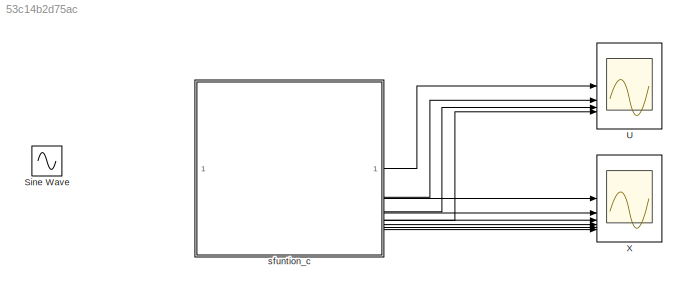
MODEL slx_53c14b2d75ac
KIND model
CONFIG AbsTol = auto
CONFIG EnableMultiTasking = off
CONFIG FixedStep = 0.002
CONFIG MaxStep = auto
CONFIG MinStep = auto
CONFIG RelTol = 1e-3
CONFIG SampleTimeConstraint = Unconstrained
CONFIG SolverName = ode4
CONFIG StartTime = 0.0
CONFIG StopTime = 12
BLOCK [Sin] Sine Wave
  Frequency = 100*2*pi
  SampleTime = 0
BLOCK [Scope] U
  Floating = off
  NumInputPorts = 4
  ScopeSpecificationString = Simulink.scopes.TimeScopeBlockCfg('CurrentConfiguration', extmgr.ConfigurationSet(extmgr.Configuration('Core','General UI',true),extmgr.Configuration('Core','Source UI',true),extmgr.Configuration('Sources','WiredSimulink',true,'DataLoggingVariableName','ScopeData1'),extmgr.Configuration('Visuals','Time Domain',true,'SerializedDisplays',{struct('MinYLimReal','-3.14288','MaxYLimReal','4.19468','YLab...<+2044ch>
BLOCK [Scope] X
  Floating = off
  NumInputPorts = 6
  ScopeSpecificationString = Simulink.scopes.TimeScopeBlockCfg('CurrentConfiguration', extmgr.ConfigurationSet(extmgr.Configuration('Core','General UI',true),extmgr.Configuration('Core','Source UI',true),extmgr.Configuration('Sources','WiredSimulink',true,'DataLoggingVariableName','ScopeData1'),extmgr.Configuration('Visuals','Time Domain',true,'SerializedDisplays',{struct('MinYLimReal','-2.53787','MaxYLimReal','4.16433','YLab...<+2075ch>
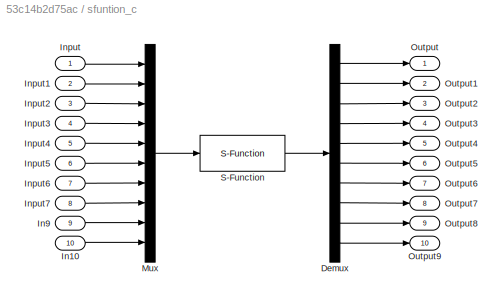
BLOCK [SubSystem] sfuntion_c
BLOCK [Demux] sfuntion_c/Demux
  Outputs = 10
BLOCK [Inport] sfuntion_c/In10
  Port = 10
BLOCK [Inport] sfuntion_c/In9
  Port = 9
BLOCK [Inport] sfuntion_c/Input
BLOCK [Inport] sfuntion_c/Input1
  Port = 2
BLOCK [Inport] sfuntion_c/Input2
  Port = 3
BLOCK [Inport] sfuntion_c/Input3
  Port = 4
BLOCK [Inport] sfuntion_c/Input4
  Port = 5
BLOCK [Inport] sfuntion_c/Input5
  Port = 6
BLOCK [Inport] sfuntion_c/Input6
  Port = 7
BLOCK [Inport] sfuntion_c/Input7
  Port = 8
BLOCK [Mux] sfuntion_c/Mux
  DisplayOption = bar
  Inputs = 10
BLOCK [Outport] sfuntion_c/Output
BLOCK [Outport] sfuntion_c/Output1
  Port = 2
BLOCK [Outport] sfuntion_c/Output2
  Port = 3
BLOCK [Outport] sfuntion_c/Output3
  Port = 4
BLOCK [Outport] sfuntion_c/Output4
  Port = 5
BLOCK [Outport] sfuntion_c/Output5
  Port = 6
BLOCK [Outport] sfuntion_c/Output6
  Port = 7
BLOCK [Outport] sfuntion_c/Output7
  Port = 8
BLOCK [Outport] sfuntion_c/Output8
  Port = 9
BLOCK [Outport] sfuntion_c/Output9
  Port = 10
BLOCK [S-Function] sfuntion_c/S-Function
  EnableBusSupport = off
  FunctionName = my_sfunction
  SFcnIsStateOwnerBlock = off
  SFunctionDeploymentMode = off
LINE sfuntion_c/Demux:1 -> sfuntion_c/Output:1
LINE sfuntion_c/Demux:10 -> sfuntion_c/Output9:1
LINE sfuntion_c/Demux:2 -> sfuntion_c/Output1:1
LINE sfuntion_c/Demux:3 -> sfuntion_c/Output2:1
LINE sfuntion_c/Demux:4 -> sfuntion_c/Output3:1
LINE sfuntion_c/Demux:5 -> sfuntion_c/Output4:1
LINE sfuntion_c/Demux:6 -> sfuntion_c/Output5:1
LINE sfuntion_c/Demux:7 -> sfuntion_c/Output6:1
LINE sfuntion_c/Demux:8 -> sfuntion_c/Output7:1
LINE sfuntion_c/Demux:9 -> sfuntion_c/Output8:1
LINE sfuntion_c/In10:1 -> sfuntion_c/Mux:10
LINE sfuntion_c/In9:1 -> sfuntion_c/Mux:9
LINE sfuntion_c/Input1:1 -> sfuntion_c/Mux:2
LINE sfuntion_c/Input2:1 -> sfuntion_c/Mux:3
LINE sfuntion_c/Input3:1 -> sfuntion_c/Mux:4
LINE sfuntion_c/Input4:1 -> sfuntion_c/Mux:5
LINE sfuntion_c/Input5:1 -> sfuntion_c/Mux:6
LINE sfuntion_c/Input6:1 -> sfuntion_c/Mux:7
LINE sfuntion_c/Input7:1 -> sfuntion_c/Mux:8
LINE sfuntion_c/Input:1 -> sfuntion_c/Mux:1
LINE sfuntion_c/Mux:1 -> sfuntion_c/S-Function:1
LINE sfuntion_c/S-Function:1 -> sfuntion_c/Demux:1
LINE sfuntion_c:1 -> U:1
LINE sfuntion_c:10 -> X:6
LINE sfuntion_c:2 -> U:2
LINE sfuntion_c:3 -> U:3
LINE sfuntion_c:4 -> U:4
LINE sfuntion_c:5 -> X:1
LINE sfuntion_c:6 -> X:2
LINE sfuntion_c:7 -> X:3
LINE sfuntion_c:8 -> X:4
LINE sfuntion_c:9 -> X:5
